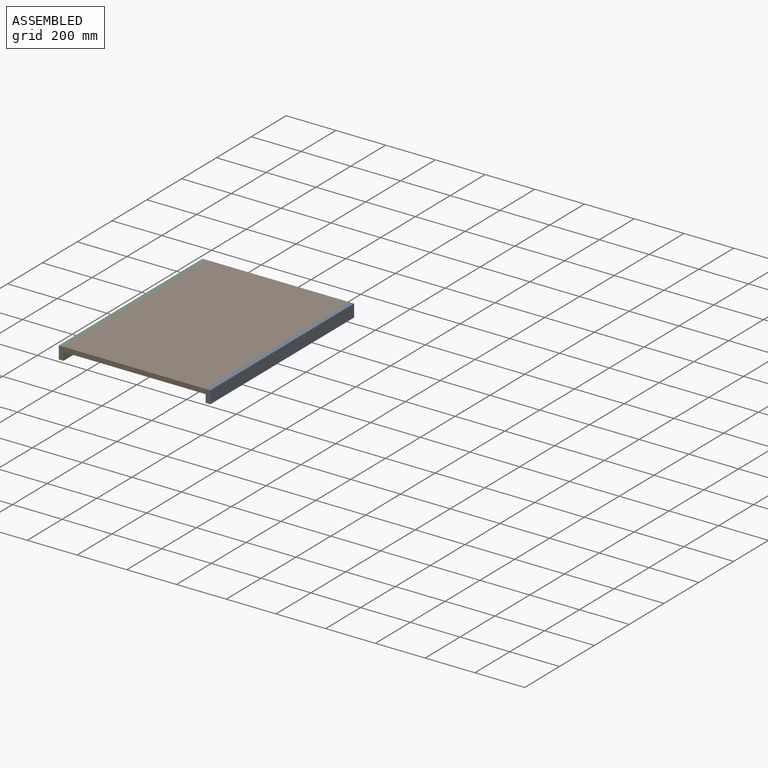
[diagram: assembled view]
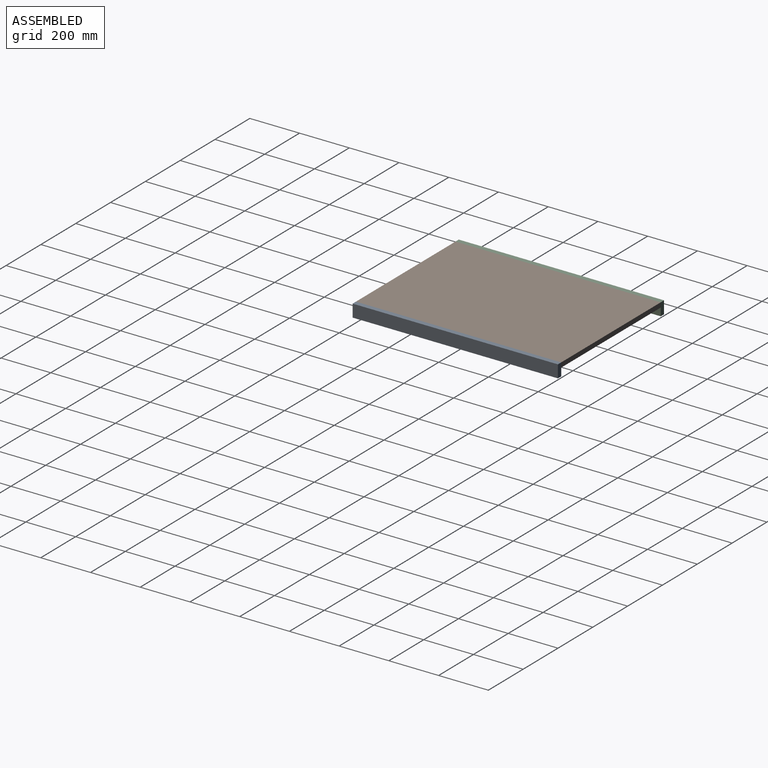
[diagram: assembled view, second angle]
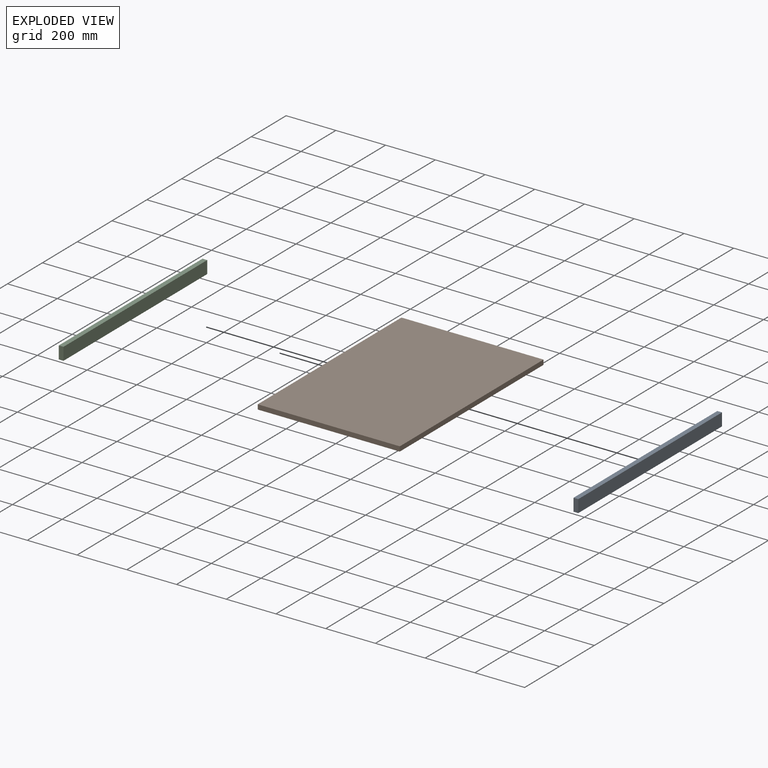
[diagram: exploded view]
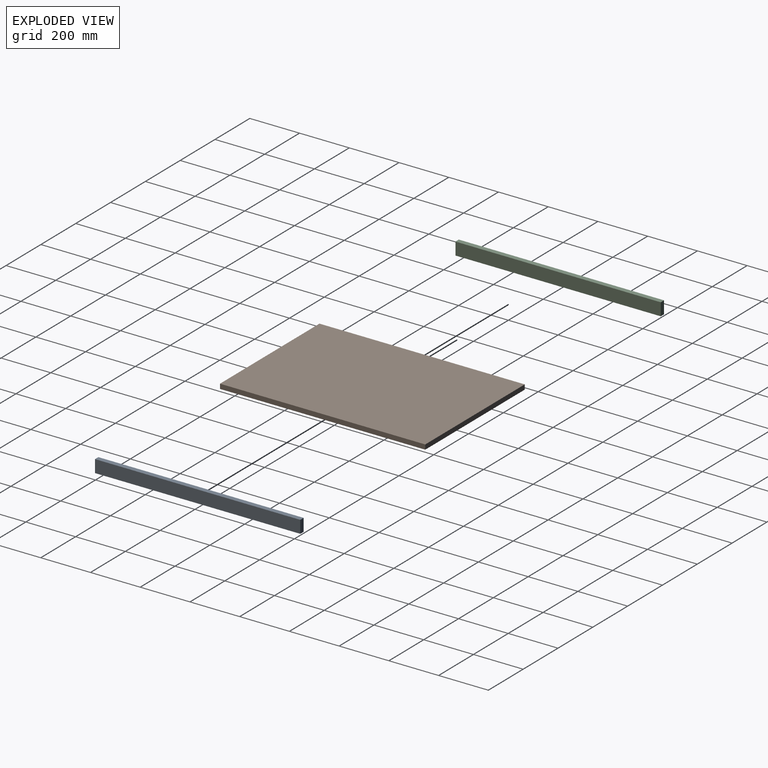
[diagram: exploded view, second angle]
ASSEMBLY  parts=3 mates=2
PART A: 6 faces, bbox 50.8x19.1x825.5 mm
  f0: plane 825.5x19.05mm, normal (-1,0,0), area 15725.8mm2, adj f1,f3,f4,f5
  f1: plane 825.5x50.8mm, normal (0,-1,0), area 41935.4mm2, adj f0,f2,f4,f5
  f2: plane 825.5x19.05mm, normal (1,0,0), area 15725.8mm2, adj f1,f3,f4,f5
  f3: plane 825.5x50.8mm, normal (0,1,0), area 41935.4mm2, adj f0,f2,f4,f5
  f4: plane 50.8x19.05mm, normal (0,0,1), area 967.7mm2, adj f0,f1,f2,f3
  f5: plane 50.8x19.05mm, normal (0,0,-1), area 967.7mm2, adj f0,f1,f2,f3
PART B: 6 faces, bbox 571.5x825.5x19.1 mm
  f0: plane 825.5x19.05mm, normal (-1,0,0), area 15725.8mm2, adj f1,f3,f4,f5
  f1: plane 571.5x19.05mm, normal (0,-1,0), area 10887.1mm2, adj f0,f2,f4,f5
  f2: plane 825.5x19.05mm, normal (1,0,0), area 15725.8mm2, adj f1,f3,f4,f5
  f3: plane 571.5x19.05mm, normal (0,1,0), area 10887.1mm2, adj f0,f2,f4,f5
  f4: plane 825.5x571.5mm, normal (0,0,1), area 471773.2mm2, adj f0,f1,f2,f3
  f5: plane 825.5x571.5mm, normal (0,0,-1), area 471773.2mm2, adj f0,f1,f2,f3
PART C: same geometry as A
PLACE A rot(axis=(-0.58,0.58,0.58),120deg) t=(304.8,-412.75,0)mm
PLACE B t=(-285.75,-412.75,-19.05)mm
PLACE C rot(axis=(-0.58,0.58,0.58),120deg) t=(-285.75,-412.75,0)mm
MATE fastened A.f3 <-> B.f2  axis (-1,0,0) through (285.75,0,0)mm
MATE fastened C.f1 <-> B.f0  axis (1,0,0) through (-285.75,0,0)mm
